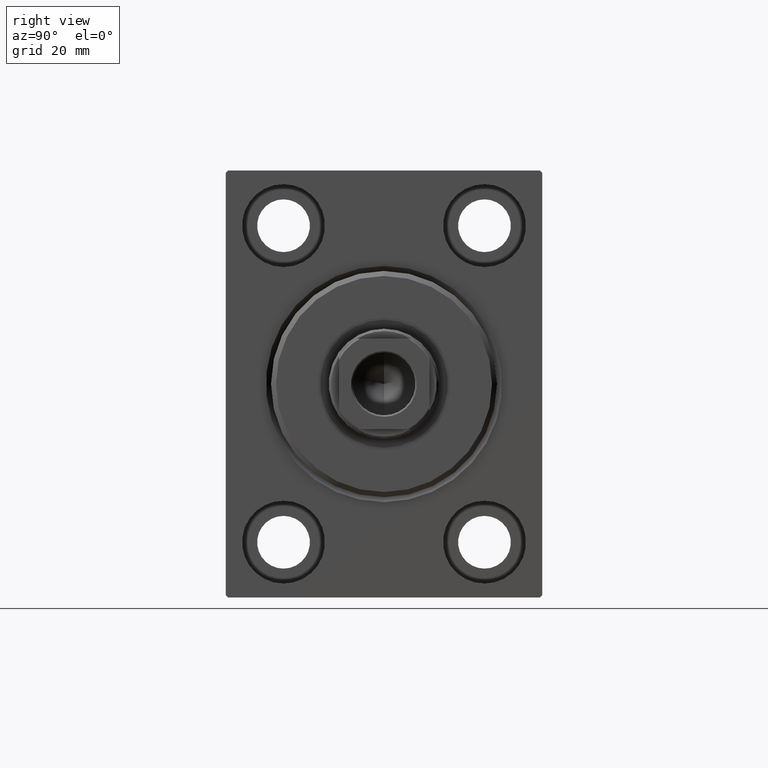
[diagram: clean part render]
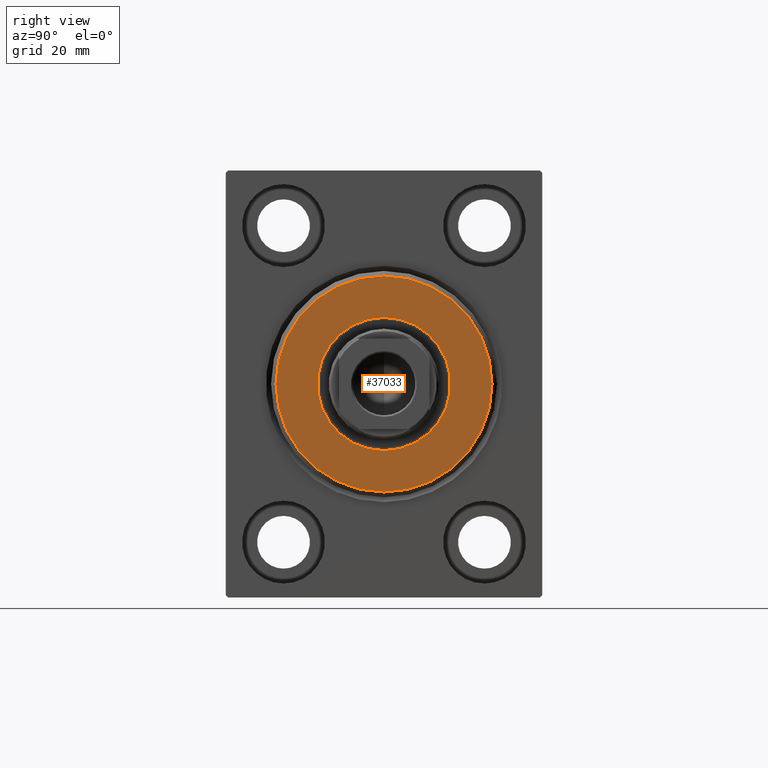
[diagram: same view with one face highlighted and labeled with its STEP entity id]
A machine part, right view. The second image highlights one B-rep face of the part: STEP entity #37033.
In plain terms, the highlighted planar face has unit normal (1, 0, 0).
Its self-contained STEP definition (entity closure, byte-faithful):
#403 = CARTESIAN_POINT ( 'NONE',  ( 3.000000000000000000, 0.000000000000000000, 21.50000000000000000 ) ) ;
#454 = EDGE_LOOP ( 'NONE', ( #5864, #35824 ) ) ;
#3808 = PLANE ( 'NONE',  #8401 ) ;
#5864 = ORIENTED_EDGE ( 'NONE', *, *, #7822, .F. ) ;
#6513 = CARTESIAN_POINT ( 'NONE',  ( 3.000000000000000000, 0.000000000000000000, 0.000000000000000000 ) ) ;
#6936 = EDGE_CURVE ( 'NONE', #10942, #33483, #36523, .T. ) ;
#7822 = EDGE_CURVE ( 'NONE', #26096, #24897, #14227, .T. ) ;
#8401 = AXIS2_PLACEMENT_3D ( 'NONE', #10338, #14615, #28353 ) ;
#8941 = DIRECTION ( 'NONE',  ( 0.000000000000000000, 0.000000000000000000, -1.000000000000000000 ) ) ;
#10338 = CARTESIAN_POINT ( 'NONE',  ( 3.000000000000000000, 0.000000000000000000, 0.000000000000000000 ) ) ;
#10942 = VERTEX_POINT ( 'NONE', #403 ) ;
#10984 = EDGE_LOOP ( 'NONE', ( #40750, #34456 ) ) ;
#12010 = AXIS2_PLACEMENT_3D ( 'NONE', #15272, #18864, #8941 ) ;
#12298 = DIRECTION ( 'NONE',  ( 0.000000000000000000, 0.000000000000000000, -1.000000000000000000 ) ) ;
#13118 = DIRECTION ( 'NONE',  ( 0.000000000000000000, 0.000000000000000000, -1.000000000000000000 ) ) ;
#13469 = CIRCLE ( 'NONE', #12010, 21.50000000000000000 ) ;
#14227 = CIRCLE ( 'NONE', #29333, 13.25000000000000178 ) ;
#14615 = DIRECTION ( 'NONE',  ( 1.000000000000000000, -0.000000000000000000, 0.000000000000000000 ) ) ;
#15272 = CARTESIAN_POINT ( 'NONE',  ( 3.000000000000000000, 0.000000000000000000, 0.000000000000000000 ) ) ;
#16878 = DIRECTION ( 'NONE',  ( 1.000000000000000000, 0.000000000000000000, 0.000000000000000000 ) ) ;
#18864 = DIRECTION ( 'NONE',  ( 1.000000000000000000, -0.000000000000000000, 0.000000000000000000 ) ) ;
#20324 = DIRECTION ( 'NONE',  ( 1.000000000000000000, -0.000000000000000000, 0.000000000000000000 ) ) ;
#22653 = CARTESIAN_POINT ( 'NONE',  ( 3.000000000000000000, 0.000000000000000000, 0.000000000000000000 ) ) ;
#23253 = CARTESIAN_POINT ( 'NONE',  ( 3.000000000000000000, 0.000000000000000000, 0.000000000000000000 ) ) ;
#24897 = VERTEX_POINT ( 'NONE', #33288 ) ;
#25002 = AXIS2_PLACEMENT_3D ( 'NONE', #23253, #20324, #13118 ) ;
#26096 = VERTEX_POINT ( 'NONE', #40592 ) ;
#28353 = DIRECTION ( 'NONE',  ( 0.000000000000000000, 0.000000000000000000, -1.000000000000000000 ) ) ;
#29333 = AXIS2_PLACEMENT_3D ( 'NONE', #22653, #39807, #12298 ) ;
#30026 = CIRCLE ( 'NONE', #37970, 13.25000000000000178 ) ;
#33288 = CARTESIAN_POINT ( 'NONE',  ( 3.000000000000000000, 1.622657008870243277E-15, 13.25000000000000178 ) ) ;
#33483 = VERTEX_POINT ( 'NONE', #39955 ) ;
#34456 = ORIENTED_EDGE ( 'NONE', *, *, #37109, .T. ) ;
#34691 = FACE_BOUND ( 'NONE', #454, .T. ) ;
#35824 = ORIENTED_EDGE ( 'NONE', *, *, #36903, .F. ) ;
#36523 = CIRCLE ( 'NONE', #25002, 21.50000000000000000 ) ;
#36903 = EDGE_CURVE ( 'NONE', #24897, #26096, #30026, .T. ) ;
#36949 = DIRECTION ( 'NONE',  ( 0.000000000000000000, 0.000000000000000000, -1.000000000000000000 ) ) ;
#37033 = ADVANCED_FACE ( 'NONE', ( #41231, #34691 ), #3808, .T. ) ;
#37109 = EDGE_CURVE ( 'NONE', #33483, #10942, #13469, .T. ) ;
#37970 = AXIS2_PLACEMENT_3D ( 'NONE', #6513, #16878, #36949 ) ;
#39807 = DIRECTION ( 'NONE',  ( 1.000000000000000000, 0.000000000000000000, 0.000000000000000000 ) ) ;
#39955 = CARTESIAN_POINT ( 'NONE',  ( 3.000000000000000000, 2.694222958124177204E-15, -21.50000000000000000 ) ) ;
#40592 = CARTESIAN_POINT ( 'NONE',  ( 3.000000000000000000, 0.000000000000000000, -13.25000000000000178 ) ) ;
#40750 = ORIENTED_EDGE ( 'NONE', *, *, #6936, .T. ) ;
#41231 = FACE_OUTER_BOUND ( 'NONE', #10984, .T. ) ;